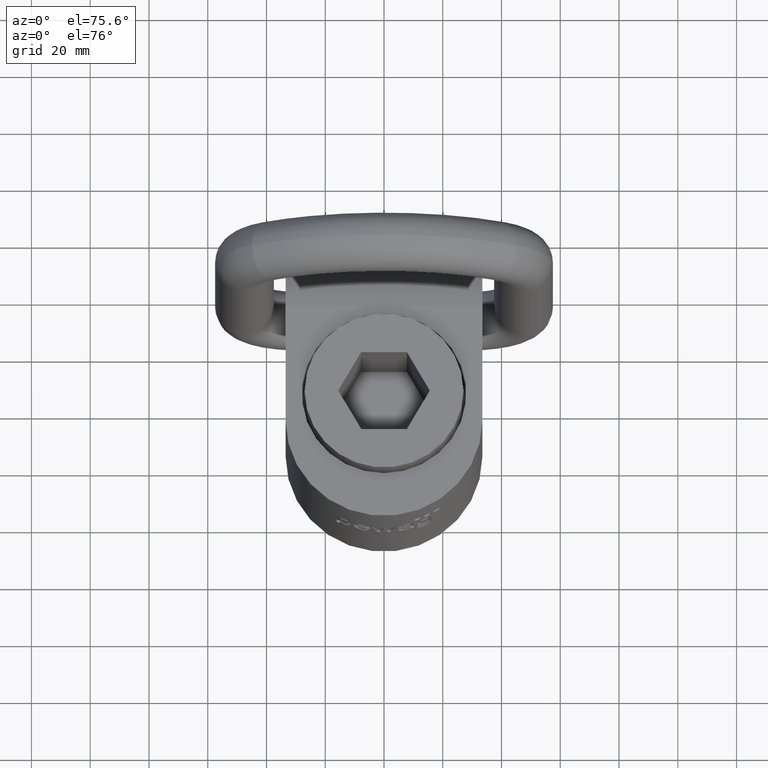
[diagram: clean part render]
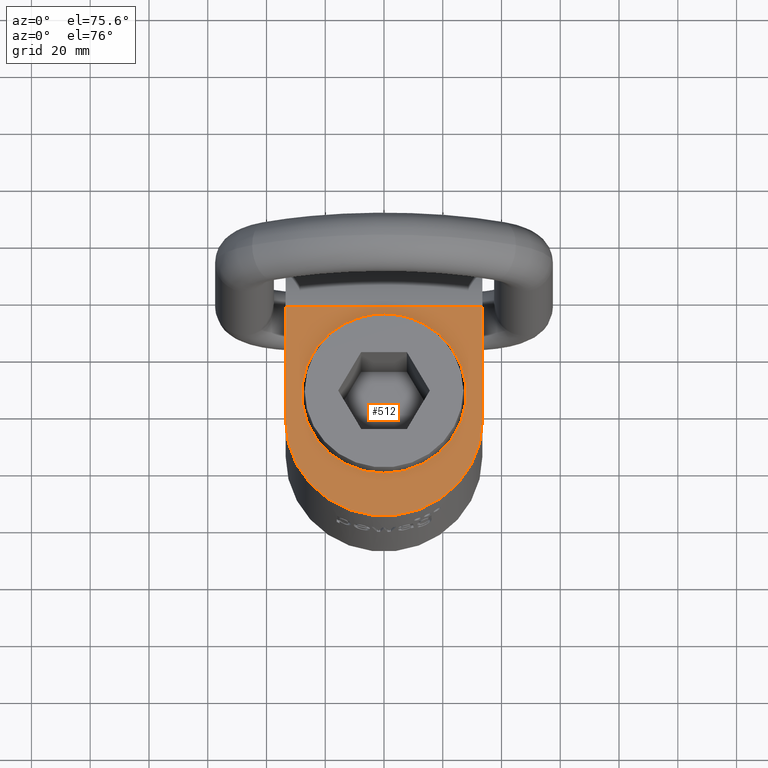
[diagram: same view with one face highlighted and labeled with its STEP entity id]
A machine part, auxiliary view. The second image highlights one B-rep face of the part: STEP entity #512.
In plain terms, the highlighted planar face has unit normal (0, -0, -1).
Its self-contained STEP definition (entity closure, byte-faithful):
#244=FACE_BOUND('',#794,.T.);
#245=FACE_BOUND('',#795,.T.);
#308=CIRCLE('',#2290,33.5);
#310=CIRCLE('',#2294,28.);
#512=ADVANCED_FACE('',(#244,#245),#634,.F.);
#634=PLANE('',#2295);
#794=EDGE_LOOP('',(#1040,#1041,#1042,#1043));
#795=EDGE_LOOP('',(#1044));
#1040=ORIENTED_EDGE('',*,*,#1792,.T.);
#1041=ORIENTED_EDGE('',*,*,#1800,.F.);
#1042=ORIENTED_EDGE('',*,*,#1801,.T.);
#1043=ORIENTED_EDGE('',*,*,#1802,.T.);
#1044=ORIENTED_EDGE('',*,*,#1803,.F.);
#1587=VERTEX_POINT('',#3465);
#1588=VERTEX_POINT('',#3467);
#1594=VERTEX_POINT('',#3597);
#1595=VERTEX_POINT('',#3599);
#1596=VERTEX_POINT('',#3602);
#1792=EDGE_CURVE('',#1588,#1587,#308,.T.);
#1800=EDGE_CURVE('',#1594,#1587,#2019,.T.);
#1801=EDGE_CURVE('',#1594,#1595,#2020,.T.);
#1802=EDGE_CURVE('',#1595,#1588,#2021,.T.);
#1803=EDGE_CURVE('',#1596,#1596,#310,.T.);
#2019=LINE('',#3596,#2127);
#2020=LINE('',#3598,#2128);
#2021=LINE('',#3600,#2129);
#2127=VECTOR('',#2491,1.);
#2128=VECTOR('',#2492,1.);
#2129=VECTOR('',#2493,1.);
#2290=AXIS2_PLACEMENT_3D('',#3466,#2479,#2480);
#2294=AXIS2_PLACEMENT_3D('',#3601,#2494,#2495);
#2295=AXIS2_PLACEMENT_3D('',#3603,#2496,#2497);
#2479=DIRECTION('',(0.,9.190587952195E-17,1.));
#2480=DIRECTION('',(0.,1.,0.));
#2491=DIRECTION('',(0.,-1.,9.190587952195E-17));
#2492=DIRECTION('',(-1.,0.,0.));
#2493=DIRECTION('',(0.,-1.,9.190587952195E-17));
#2494=DIRECTION('',(0.,9.190587952195E-17,1.));
#2495=DIRECTION('',(0.,1.,0.));
#2496=DIRECTION('',(0.,-9.190587952195E-17,-1.));
#2497=DIRECTION('',(0.,1.,-9.0205620750794E-17));
#3465=CARTESIAN_POINT('',(33.5,-9.5,49.));
#3466=CARTESIAN_POINT('',(0.,-9.5,49.));
#3467=CARTESIAN_POINT('',(-33.5,-9.5,49.));
#3596=CARTESIAN_POINT('',(33.5,30.5,49.));
#3597=CARTESIAN_POINT('',(33.5,30.5,49.));
#3598=CARTESIAN_POINT('',(33.5,30.5,49.));
#3599=CARTESIAN_POINT('',(-33.5,30.5,49.));
#3600=CARTESIAN_POINT('',(-33.5,30.5,49.));
#3601=CARTESIAN_POINT('',(0.,3.77191155802137E-15,49.));
#3602=CARTESIAN_POINT('',(0.,28.,49.));
#3603=CARTESIAN_POINT('',(33.5,30.5,49.));